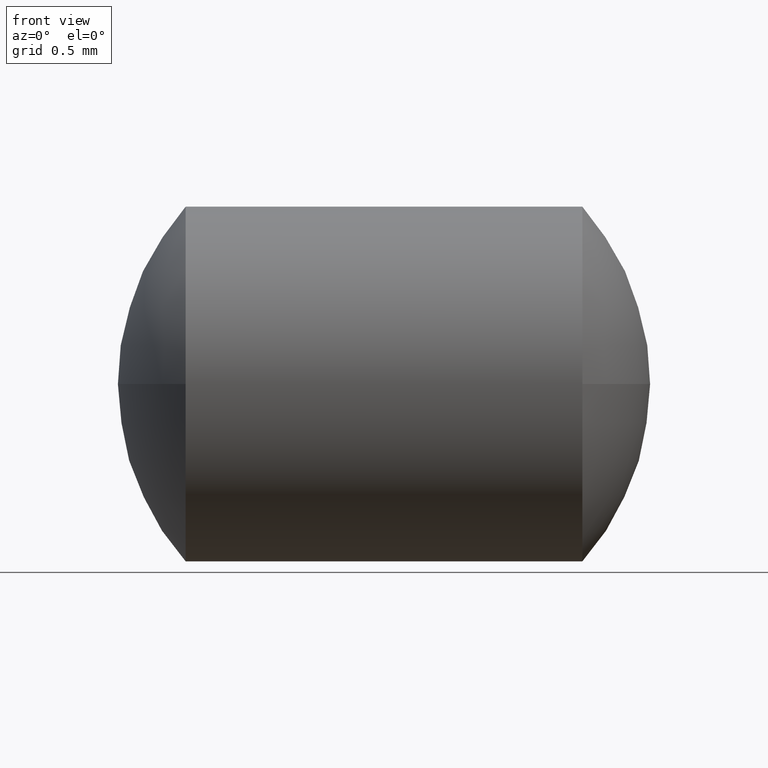
[diagram: clean part render]
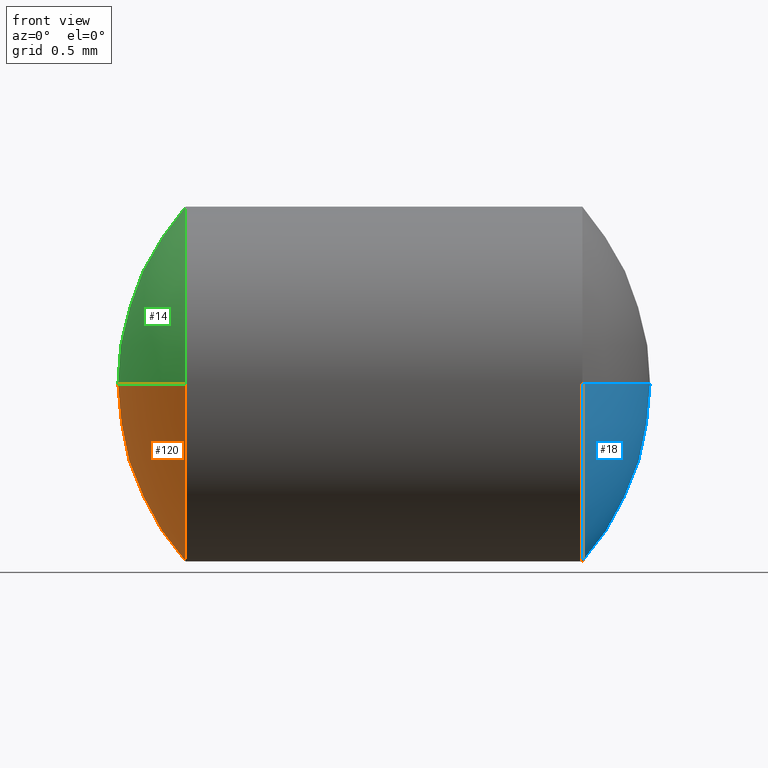
[diagram: same view with three faces highlighted in distinct colors, each labeled with its STEP entity id]
A machine part, front view with three faces highlighted in distinct colors.
Their STEP definitions:

[orange] entity #120 — the highlighted spherical surface has radius 1.5 mm.
#5 = DIRECTION ( 'NONE',  ( 1.000000000000000000, 0.0000000000000000000, 0.0000000000000000000 ) ) ;
#8 = AXIS2_PLACEMENT_3D ( 'NONE', #252, #300, #326 ) ;
#29 = DIRECTION ( 'NONE',  ( -0.0000000000000000000, 0.0000000000000000000, -1.000000000000000000 ) ) ;
#32 = AXIS2_PLACEMENT_3D ( 'NONE', #108, #29, #293 ) ;
#57 = CARTESIAN_POINT ( 'NONE',  ( 232.4900289458013600, 133.3448637497280600, 0.0000000000000000000 ) ) ;
#70 = AXIS2_PLACEMENT_3D ( 'NONE', #82, #241, #242 ) ;
#71 = FACE_OUTER_BOUND ( 'NONE', #206, .T. ) ;
#82 = CARTESIAN_POINT ( 'NONE',  ( 233.9900289458013800, 133.3448637497280600, 0.0000000000000000000 ) ) ;
#83 = CARTESIAN_POINT ( 'NONE',  ( 232.8719949570514700, 132.3448637497280900, -1.224646799147344800E-016 ) ) ;
#84 = DIRECTION ( 'NONE',  ( 0.0000000000000000000, 0.0000000000000000000, 1.000000000000000000 ) ) ;
#108 = CARTESIAN_POINT ( 'NONE',  ( 233.9900289458013800, 133.3448637497280600, 0.0000000000000000000 ) ) ;
#120 = ADVANCED_FACE ( 'NONE', ( #71 ), #195, .T. ) ;
#122 = AXIS2_PLACEMENT_3D ( 'NONE', #218, #244, #84 ) ;
#125 = CIRCLE ( 'NONE', #138, 1.500000000000001300 ) ;
#138 = AXIS2_PLACEMENT_3D ( 'NONE', #319, #263, #5 ) ;
#146 = ORIENTED_EDGE ( 'NONE', *, *, #315, .T. ) ;
#148 = EDGE_CURVE ( 'NONE', #216, #183, #211, .T. ) ;
#155 = ORIENTED_EDGE ( 'NONE', *, *, #171, .F. ) ;
#166 = CARTESIAN_POINT ( 'NONE',  ( 232.8719949570514700, 133.3448637497280600, -1.000000000000000900 ) ) ;
#170 = EDGE_CURVE ( 'NONE', #227, #331, #332, .T. ) ;
#171 = EDGE_CURVE ( 'NONE', #227, #183, #125, .T. ) ;
#183 = VERTEX_POINT ( 'NONE', #57 ) ;
#195 = SPHERICAL_SURFACE ( 'NONE', #32, 1.499999999999998200 ) ;
#205 = CIRCLE ( 'NONE', #8, 1.000000000000000900 ) ;
#206 = EDGE_LOOP ( 'NONE', ( #221, #146, #283, #155 ) ) ;
#211 = CIRCLE ( 'NONE', #70, 1.500000000000001300 ) ;
#216 = VERTEX_POINT ( 'NONE', #83 ) ;
#218 = CARTESIAN_POINT ( 'NONE',  ( 232.8719949570514700, 133.3448637497280600, 0.0000000000000000000 ) ) ;
#221 = ORIENTED_EDGE ( 'NONE', *, *, #170, .T. ) ;
#223 = CARTESIAN_POINT ( 'NONE',  ( 232.8719949570514700, 134.3448637497280300, 0.0000000000000000000 ) ) ;
#227 = VERTEX_POINT ( 'NONE', #223 ) ;
#241 = DIRECTION ( 'NONE',  ( 0.0000000000000000000, 1.224646799147353200E-016, -1.000000000000000000 ) ) ;
#242 = DIRECTION ( 'NONE',  ( 0.0000000000000000000, 1.000000000000000000, 1.224646799147350700E-016 ) ) ;
#244 = DIRECTION ( 'NONE',  ( -1.000000000000000000, -0.0000000000000000000, -0.0000000000000000000 ) ) ;
#252 = CARTESIAN_POINT ( 'NONE',  ( 232.8719949570514700, 133.3448637497280600, 0.0000000000000000000 ) ) ;
#263 = DIRECTION ( 'NONE',  ( -0.0000000000000000000, 0.0000000000000000000, 1.000000000000000000 ) ) ;
#283 = ORIENTED_EDGE ( 'NONE', *, *, #148, .T. ) ;
#293 = DIRECTION ( 'NONE',  ( 0.0000000000000000000, 1.000000000000000000, 0.0000000000000000000 ) ) ;
#300 = DIRECTION ( 'NONE',  ( -1.000000000000000000, -0.0000000000000000000, -0.0000000000000000000 ) ) ;
#315 = EDGE_CURVE ( 'NONE', #331, #216, #205, .T. ) ;
#319 = CARTESIAN_POINT ( 'NONE',  ( 233.9900289458013800, 133.3448637497280600, 0.0000000000000000000 ) ) ;
#326 = DIRECTION ( 'NONE',  ( 0.0000000000000000000, 0.0000000000000000000, 1.000000000000000000 ) ) ;
#331 = VERTEX_POINT ( 'NONE', #166 ) ;
#332 = CIRCLE ( 'NONE', #122, 1.000000000000000900 ) ;

[blue] entity #18 — the highlighted spherical surface has radius 1.5 mm.
#1 = DIRECTION ( 'NONE',  ( 0.0000000000000000000, 1.000000000000000000, 1.224646799147359400E-016 ) ) ;
#4 = VERTEX_POINT ( 'NONE', #209 ) ;
#9 = DIRECTION ( 'NONE',  ( 0.0000000000000000000, 0.0000000000000000000, 1.000000000000000000 ) ) ;
#18 = ADVANCED_FACE ( 'NONE', ( #178 ), #250, .T. ) ;
#28 = CIRCLE ( 'NONE', #152, 1.500000000000001300 ) ;
#33 = DIRECTION ( 'NONE',  ( 1.000000000000000000, 0.0000000000000000000, 0.0000000000000000000 ) ) ;
#49 = EDGE_CURVE ( 'NONE', #320, #4, #116, .T. ) ;
#56 = DIRECTION ( 'NONE',  ( 0.0000000000000000000, 1.224646799147353200E-016, -1.000000000000000000 ) ) ;
#63 = EDGE_CURVE ( 'NONE', #150, #4, #262, .T. ) ;
#75 = ORIENTED_EDGE ( 'NONE', *, *, #336, .F. ) ;
#80 = EDGE_CURVE ( 'NONE', #320, #275, #28, .T. ) ;
#104 = CARTESIAN_POINT ( 'NONE',  ( 235.1080629345512700, 133.3448637497280600, -1.000000000000000900 ) ) ;
#109 = EDGE_LOOP ( 'NONE', ( #231, #287, #163, #75 ) ) ;
#111 = DIRECTION ( 'NONE',  ( -1.000000000000000000, -0.0000000000000000000, -0.0000000000000000000 ) ) ;
#113 = AXIS2_PLACEMENT_3D ( 'NONE', #162, #56, #1 ) ;
#116 = CIRCLE ( 'NONE', #113, 1.500000000000001300 ) ;
#132 = AXIS2_PLACEMENT_3D ( 'NONE', #190, #294, #164 ) ;
#135 = CARTESIAN_POINT ( 'NONE',  ( 235.4900289458013800, 133.3448637497280600, 0.0000000000000000000 ) ) ;
#150 = VERTEX_POINT ( 'NONE', #104 ) ;
#152 = AXIS2_PLACEMENT_3D ( 'NONE', #191, #344, #33 ) ;
#162 = CARTESIAN_POINT ( 'NONE',  ( 233.9900289458013800, 133.3448637497280600, 0.0000000000000000000 ) ) ;
#163 = ORIENTED_EDGE ( 'NONE', *, *, #63, .F. ) ;
#164 = DIRECTION ( 'NONE',  ( 0.0000000000000000000, 0.0000000000000000000, 1.000000000000000000 ) ) ;
#178 = FACE_OUTER_BOUND ( 'NONE', #109, .T. ) ;
#181 = CARTESIAN_POINT ( 'NONE',  ( 233.9900289458013800, 133.3448637497280600, 0.0000000000000000000 ) ) ;
#188 = CARTESIAN_POINT ( 'NONE',  ( 235.1080629345512700, 134.3448637497280600, 0.0000000000000000000 ) ) ;
#190 = CARTESIAN_POINT ( 'NONE',  ( 235.1080629345512700, 133.3448637497280600, 0.0000000000000000000 ) ) ;
#191 = CARTESIAN_POINT ( 'NONE',  ( 233.9900289458013800, 133.3448637497280600, 0.0000000000000000000 ) ) ;
#197 = CARTESIAN_POINT ( 'NONE',  ( 235.1080629345512700, 133.3448637497280600, 0.0000000000000000000 ) ) ;
#209 = CARTESIAN_POINT ( 'NONE',  ( 235.1080629345512700, 132.3448637497280600, -1.224646799147354200E-016 ) ) ;
#214 = DIRECTION ( 'NONE',  ( -0.0000000000000000000, 0.0000000000000000000, -1.000000000000000000 ) ) ;
#231 = ORIENTED_EDGE ( 'NONE', *, *, #80, .F. ) ;
#233 = AXIS2_PLACEMENT_3D ( 'NONE', #197, #111, #9 ) ;
#250 = SPHERICAL_SURFACE ( 'NONE', #334, 1.500000000000008700 ) ;
#262 = CIRCLE ( 'NONE', #132, 1.000000000000000900 ) ;
#270 = CIRCLE ( 'NONE', #233, 1.000000000000000900 ) ;
#275 = VERTEX_POINT ( 'NONE', #188 ) ;
#287 = ORIENTED_EDGE ( 'NONE', *, *, #49, .T. ) ;
#294 = DIRECTION ( 'NONE',  ( -1.000000000000000000, -0.0000000000000000000, -0.0000000000000000000 ) ) ;
#308 = DIRECTION ( 'NONE',  ( 0.0000000000000000000, 1.000000000000000000, 0.0000000000000000000 ) ) ;
#320 = VERTEX_POINT ( 'NONE', #135 ) ;
#334 = AXIS2_PLACEMENT_3D ( 'NONE', #181, #214, #308 ) ;
#336 = EDGE_CURVE ( 'NONE', #275, #150, #270, .T. ) ;
#344 = DIRECTION ( 'NONE',  ( -0.0000000000000000000, 0.0000000000000000000, 1.000000000000000000 ) ) ;

[green] entity #14 — the highlighted spherical surface has radius 1.5 mm.
#5 = DIRECTION ( 'NONE',  ( 1.000000000000000000, 0.0000000000000000000, 0.0000000000000000000 ) ) ;
#10 = CARTESIAN_POINT ( 'NONE',  ( 232.8719949570514700, 133.3448637497280600, 0.0000000000000000000 ) ) ;
#14 = ADVANCED_FACE ( 'NONE', ( #133 ), #65, .T. ) ;
#15 = AXIS2_PLACEMENT_3D ( 'NONE', #24, #130, #55 ) ;
#24 = CARTESIAN_POINT ( 'NONE',  ( 233.9900289458013800, 133.3448637497280600, 0.0000000000000000000 ) ) ;
#36 = DIRECTION ( 'NONE',  ( 0.0000000000000000000, 0.0000000000000000000, 1.000000000000000000 ) ) ;
#53 = CIRCLE ( 'NONE', #213, 1.000000000000000900 ) ;
#55 = DIRECTION ( 'NONE',  ( 0.0000000000000000000, 1.000000000000000000, 0.0000000000000000000 ) ) ;
#57 = CARTESIAN_POINT ( 'NONE',  ( 232.4900289458013600, 133.3448637497280600, 0.0000000000000000000 ) ) ;
#61 = CARTESIAN_POINT ( 'NONE',  ( 232.8719949570514700, 133.3448637497280600, 1.000000000000000900 ) ) ;
#65 = SPHERICAL_SURFACE ( 'NONE', #15, 1.499999999999998200 ) ;
#70 = AXIS2_PLACEMENT_3D ( 'NONE', #82, #241, #242 ) ;
#82 = CARTESIAN_POINT ( 'NONE',  ( 233.9900289458013800, 133.3448637497280600, 0.0000000000000000000 ) ) ;
#83 = CARTESIAN_POINT ( 'NONE',  ( 232.8719949570514700, 132.3448637497280900, -1.224646799147344800E-016 ) ) ;
#125 = CIRCLE ( 'NONE', #138, 1.500000000000001300 ) ;
#130 = DIRECTION ( 'NONE',  ( -0.0000000000000000000, 0.0000000000000000000, -1.000000000000000000 ) ) ;
#133 = FACE_OUTER_BOUND ( 'NONE', #215, .T. ) ;
#138 = AXIS2_PLACEMENT_3D ( 'NONE', #319, #263, #5 ) ;
#148 = EDGE_CURVE ( 'NONE', #216, #183, #211, .T. ) ;
#156 = AXIS2_PLACEMENT_3D ( 'NONE', #288, #193, #291 ) ;
#171 = EDGE_CURVE ( 'NONE', #227, #183, #125, .T. ) ;
#183 = VERTEX_POINT ( 'NONE', #57 ) ;
#189 = EDGE_CURVE ( 'NONE', #216, #264, #257, .T. ) ;
#193 = DIRECTION ( 'NONE',  ( -1.000000000000000000, -0.0000000000000000000, -0.0000000000000000000 ) ) ;
#198 = ORIENTED_EDGE ( 'NONE', *, *, #189, .T. ) ;
#210 = ORIENTED_EDGE ( 'NONE', *, *, #311, .T. ) ;
#211 = CIRCLE ( 'NONE', #70, 1.500000000000001300 ) ;
#213 = AXIS2_PLACEMENT_3D ( 'NONE', #10, #271, #36 ) ;
#215 = EDGE_LOOP ( 'NONE', ( #341, #198, #210, #281 ) ) ;
#216 = VERTEX_POINT ( 'NONE', #83 ) ;
#223 = CARTESIAN_POINT ( 'NONE',  ( 232.8719949570514700, 134.3448637497280300, 0.0000000000000000000 ) ) ;
#227 = VERTEX_POINT ( 'NONE', #223 ) ;
#241 = DIRECTION ( 'NONE',  ( 0.0000000000000000000, 1.224646799147353200E-016, -1.000000000000000000 ) ) ;
#242 = DIRECTION ( 'NONE',  ( 0.0000000000000000000, 1.000000000000000000, 1.224646799147350700E-016 ) ) ;
#257 = CIRCLE ( 'NONE', #156, 1.000000000000000900 ) ;
#263 = DIRECTION ( 'NONE',  ( -0.0000000000000000000, 0.0000000000000000000, 1.000000000000000000 ) ) ;
#264 = VERTEX_POINT ( 'NONE', #61 ) ;
#271 = DIRECTION ( 'NONE',  ( -1.000000000000000000, -0.0000000000000000000, -0.0000000000000000000 ) ) ;
#281 = ORIENTED_EDGE ( 'NONE', *, *, #171, .T. ) ;
#288 = CARTESIAN_POINT ( 'NONE',  ( 232.8719949570514700, 133.3448637497280600, 0.0000000000000000000 ) ) ;
#291 = DIRECTION ( 'NONE',  ( 0.0000000000000000000, 0.0000000000000000000, 1.000000000000000000 ) ) ;
#311 = EDGE_CURVE ( 'NONE', #264, #227, #53, .T. ) ;
#319 = CARTESIAN_POINT ( 'NONE',  ( 233.9900289458013800, 133.3448637497280600, 0.0000000000000000000 ) ) ;
#341 = ORIENTED_EDGE ( 'NONE', *, *, #148, .F. ) ;